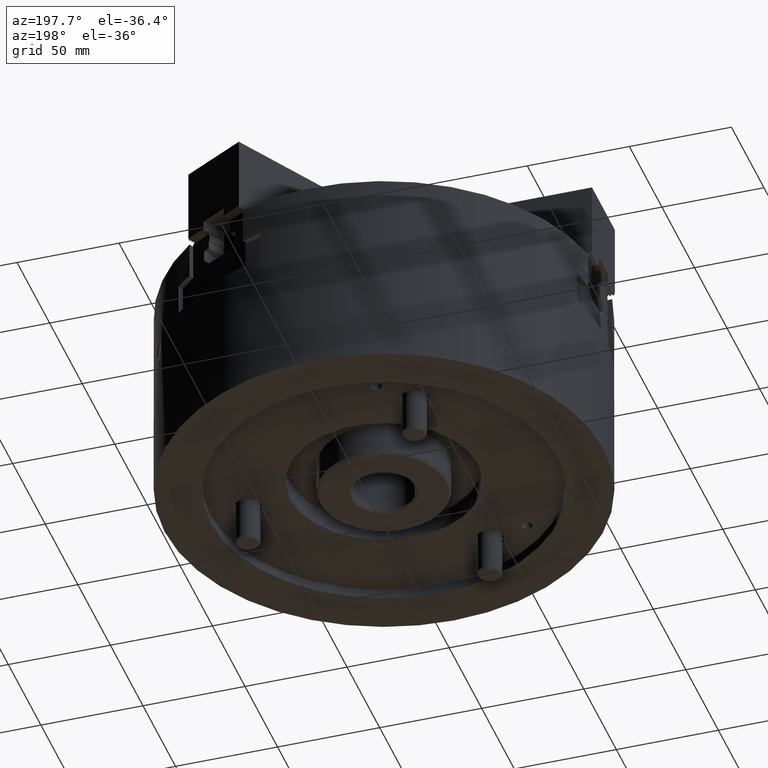
[diagram: clean part render]
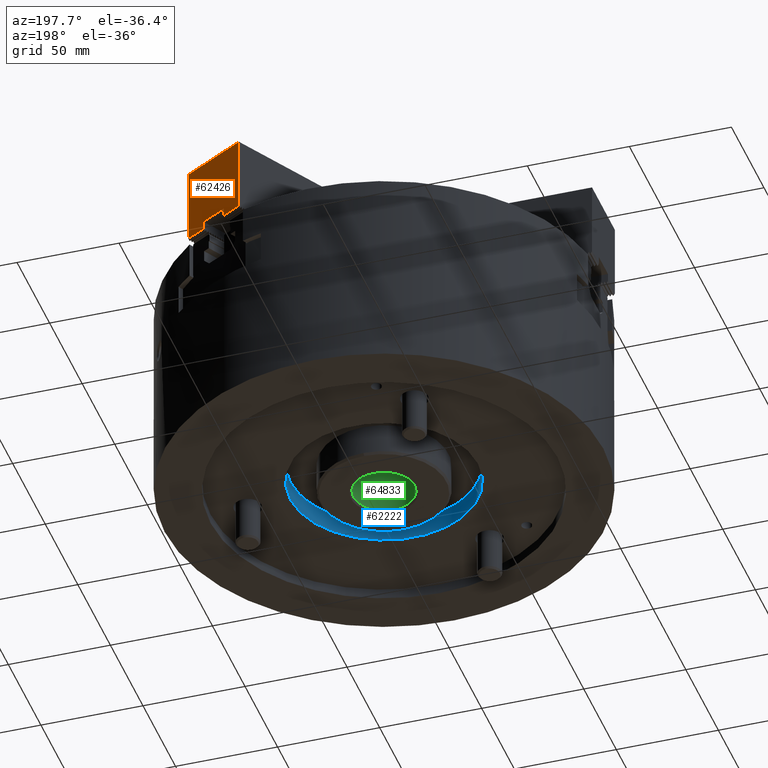
[diagram: same view with three faces highlighted in distinct colors, each labeled with its STEP entity id]
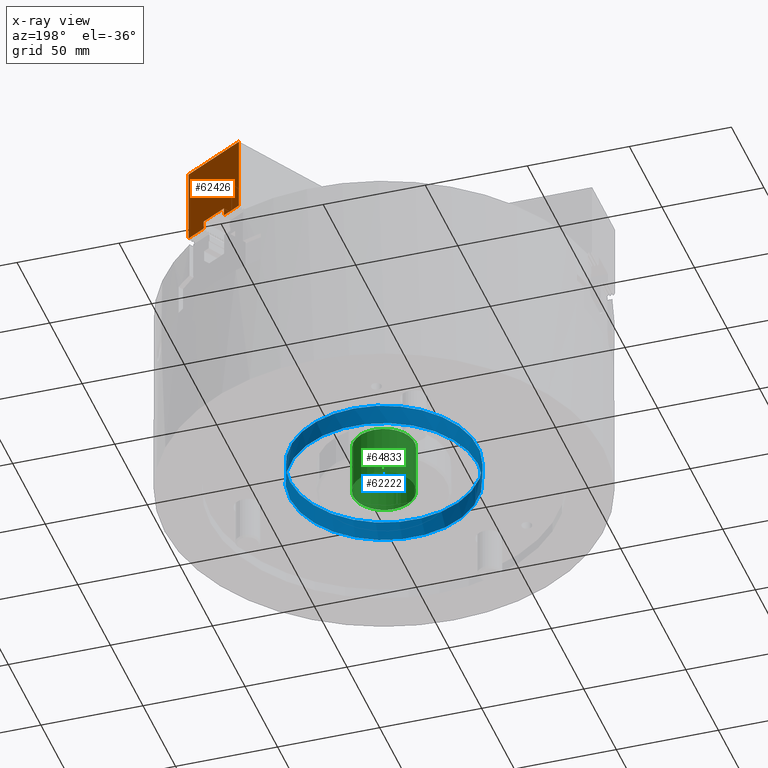
[diagram: x-ray of the same camera — body ghosted, the three highlighted faces saturated]
A machine part, auxiliary view with three faces highlighted in distinct colors.
The next image is the same camera in x-ray (body ghosted, the three faces saturated) — at least one of them is partly hidden behind the body in this view.
Their STEP definitions:

[orange] entity #62426 — the highlighted planar face has unit normal (0.5, 0.866, 0).
#5470=ORIENTED_EDGE('',*,*,#23212,.T.);
#5471=ORIENTED_EDGE('',*,*,#23897,.T.);
#5472=ORIENTED_EDGE('',*,*,#23898,.T.);
#5473=ORIENTED_EDGE('',*,*,#23899,.T.);
#5474=ORIENTED_EDGE('',*,*,#23900,.T.);
#5475=ORIENTED_EDGE('',*,*,#23901,.T.);
#5476=ORIENTED_EDGE('',*,*,#23229,.T.);
#5477=ORIENTED_EDGE('',*,*,#23902,.T.);
#23212=EDGE_CURVE('',#32611,#32610,#38496,.T.);
#23229=EDGE_CURVE('',#32627,#32626,#38512,.T.);
#23897=EDGE_CURVE('',#32610,#33133,#39130,.T.);
#23898=EDGE_CURVE('',#33133,#33134,#39131,.T.);
#23899=EDGE_CURVE('',#33134,#33135,#39132,.T.);
#23900=EDGE_CURVE('',#33135,#33136,#39133,.T.);
#23901=EDGE_CURVE('',#33136,#32627,#39134,.T.);
#23902=EDGE_CURVE('',#32626,#32611,#39135,.T.);
#32610=VERTEX_POINT('',#91605);
#32611=VERTEX_POINT('',#91607);
#32626=VERTEX_POINT('',#91641);
#32627=VERTEX_POINT('',#91643);
#33133=VERTEX_POINT('',#92918);
#33134=VERTEX_POINT('',#92920);
#33135=VERTEX_POINT('',#92922);
#33136=VERTEX_POINT('',#92924);
#38496=LINE('',#91606,#46496);
#38512=LINE('',#91642,#46512);
#39130=LINE('',#92917,#47130);
#39131=LINE('',#92919,#47131);
#39132=LINE('',#92921,#47132);
#39133=LINE('',#92923,#47133);
#39134=LINE('',#92925,#47134);
#39135=LINE('',#92926,#47135);
#46496=VECTOR('',#71442,1000.);
#46512=VECTOR('',#71466,1000.);
#47130=VECTOR('',#72386,1000.);
#47131=VECTOR('',#72387,1000.);
#47132=VECTOR('',#72388,1000.);
#47133=VECTOR('',#72389,1000.);
#47134=VECTOR('',#72390,1000.);
#47135=VECTOR('',#72391,1000.);
#53978=EDGE_LOOP('',(#5470,#5471,#5472,#5473,#5474,#5475,#5476,#5477));
#57192=FACE_BOUND('',#53978,.T.);
#60189=PLANE('',#65647);
#62426=ADVANCED_FACE('',(#57192),#60189,.T.);
#65647=AXIS2_PLACEMENT_3D('',#92916,#72384,#72385);
#71442=DIRECTION('',(1.58138378814437E-16,-9.1301235577727E-17,-1.));
#71466=DIRECTION('',(1.58138378814437E-16,-9.1301235577727E-17,1.));
#72384=DIRECTION('',(0.500000000000003,0.866025403784437,0.));
#72385=DIRECTION('',(0.,0.,1.));
#72386=DIRECTION('',(-0.866025403784437,0.500000000000003,0.));
#72387=DIRECTION('',(0.,0.,1.));
#72388=DIRECTION('',(-0.866025403784437,0.500000000000003,0.));
#72389=DIRECTION('',(0.,0.,-1.));
#72390=DIRECTION('',(-0.866025403784437,0.500000000000003,0.));
#72391=DIRECTION('',(0.866025403784437,-0.500000000000003,0.));
#91605=CARTESIAN_POINT('',(68.9054445662282,84.3477309068268,2.1499999999991));
#91606=CARTESIAN_POINT('',(68.9054445662282,84.3477309068268,39.1999999999991));
#91607=CARTESIAN_POINT('',(68.9054445662282,84.3477309068268,39.1999999999991));
#91641=CARTESIAN_POINT('',(38.5945554337729,101.847730906827,39.1999999999991));
#91642=CARTESIAN_POINT('',(38.5945554337729,101.847730906827,1.1999999999991));
#91643=CARTESIAN_POINT('',(38.5945554337729,101.847730906827,2.1499999999991));
#92916=CARTESIAN_POINT('',(68.9054445662282,84.3477309068268,1.1999999999991));
#92917=CARTESIAN_POINT('',(8.97648662434519,118.947730906827,2.1499999999991));
#92918=CARTESIAN_POINT('',(59.8121778264916,89.5977309068268,2.1499999999991));
#92919=CARTESIAN_POINT('',(59.8121778264916,89.5977309068268,1.1999999999991));
#92920=CARTESIAN_POINT('',(59.8121778264916,89.5977309068268,6.1999999999991));
#92921=CARTESIAN_POINT('',(59.8121778264916,89.5977309068268,6.1999999999991));
#92922=CARTESIAN_POINT('',(47.6878221735095,96.5977309068268,6.1999999999991));
#92923=CARTESIAN_POINT('',(47.6878221735095,96.5977309068268,6.1999999999991));
#92924=CARTESIAN_POINT('',(47.6878221735095,96.5977309068269,2.1499999999991));
#92925=CARTESIAN_POINT('',(8.97648662434519,118.947730906827,2.1499999999991));
#92926=CARTESIAN_POINT('',(38.5945554337729,101.847730906827,39.1999999999991));

[blue] entity #62222 — the highlighted cylindrical surface (bore or boss wall) has radius 46 mm, axis along (-0, 0, 1).
#864=CYLINDRICAL_SURFACE('',#65187,46.);
#1562=CIRCLE('',#65186,46.);
#1563=CIRCLE('',#65188,46.);
#3460=ORIENTED_EDGE('',*,*,#22394,.T.);
#3461=ORIENTED_EDGE('',*,*,#22393,.F.);
#22393=EDGE_CURVE('',#31872,#31872,#1562,.T.);
#22394=EDGE_CURVE('',#31873,#31873,#1563,.T.);
#31872=VERTEX_POINT('',#89948);
#31873=VERTEX_POINT('',#89951);
#53710=EDGE_LOOP('',(#3460));
#53711=EDGE_LOOP('',(#3461));
#56924=FACE_BOUND('',#53710,.T.);
#56925=FACE_BOUND('',#53711,.T.);
#62222=ADVANCED_FACE('',(#56924,#56925),#864,.F.);
#65186=AXIS2_PLACEMENT_3D('',#89947,#70215,#70216);
#65187=AXIS2_PLACEMENT_3D('',#89949,#70217,#70218);
#65188=AXIS2_PLACEMENT_3D('',#89950,#70219,#70220);
#70215=DIRECTION('',(-2.34290668463255E-15,0.,1.));
#70216=DIRECTION('',(1.,0.,2.41352831440251E-15));
#70217=DIRECTION('',(-2.34290668463255E-15,0.,1.));
#70218=DIRECTION('',(1.,0.,2.34290668463255E-15));
#70219=DIRECTION('',(0.,0.,1.));
#70220=DIRECTION('',(0.,1.,0.));
#89947=CARTESIAN_POINT('',(2.22576135040092E-13,0.,-95.));
#89948=CARTESIAN_POINT('',(46.0000000000002,0.,-94.9999999999999));
#89949=CARTESIAN_POINT('',(0.,0.,0.));
#89950=CARTESIAN_POINT('',(0.,0.,-84.9));
#89951=CARTESIAN_POINT('',(0.,46.,-84.9));

[green] entity #64833 — the highlighted cylindrical surface (bore or boss wall) has radius 15 mm, axis along (0, 0, 1).
#1479=CYLINDRICAL_SURFACE('',#69181,15.);
#2442=CIRCLE('',#69182,15.);
#2443=CIRCLE('',#69183,15.);
#21521=ORIENTED_EDGE('',*,*,#31304,.T.);
#21522=ORIENTED_EDGE('',*,*,#31305,.T.);
#31304=EDGE_CURVE('',#37348,#37348,#2442,.T.);
#31305=EDGE_CURVE('',#37349,#37349,#2443,.T.);
#37348=VERTEX_POINT('',#106965);
#37349=VERTEX_POINT('',#106967);
#56491=EDGE_LOOP('',(#21521));
#56492=EDGE_LOOP('',(#21522));
#59705=FACE_BOUND('',#56491,.T.);
#59706=FACE_BOUND('',#56492,.T.);
#64833=ADVANCED_FACE('',(#59705,#59706),#1479,.F.);
#69181=AXIS2_PLACEMENT_3D('',#106963,#85726,#85727);
#69182=AXIS2_PLACEMENT_3D('',#106964,#85728,#85729);
#69183=AXIS2_PLACEMENT_3D('',#106966,#85730,#85731);
#85726=DIRECTION('',(0.,0.,1.));
#85727=DIRECTION('',(0.,1.,0.));
#85728=DIRECTION('',(0.,0.,-1.));
#85729=DIRECTION('',(0.,1.,0.));
#85730=DIRECTION('',(0.,0.,1.));
#85731=DIRECTION('',(0.,-1.,0.));
#106963=CARTESIAN_POINT('',(0.,0.,-101.5));
#106964=CARTESIAN_POINT('',(0.,0.,-100.5));
#106965=CARTESIAN_POINT('',(0.,15.,-100.5));
#106966=CARTESIAN_POINT('',(0.,0.,-75.5));
#106967=CARTESIAN_POINT('',(0.,-15.,-75.5));